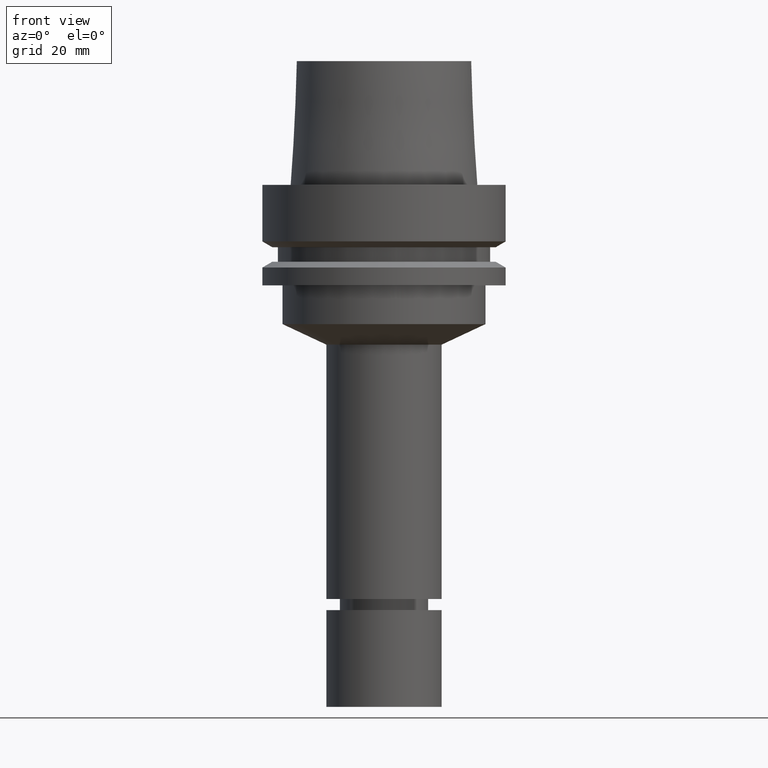
[diagram: clean part render]
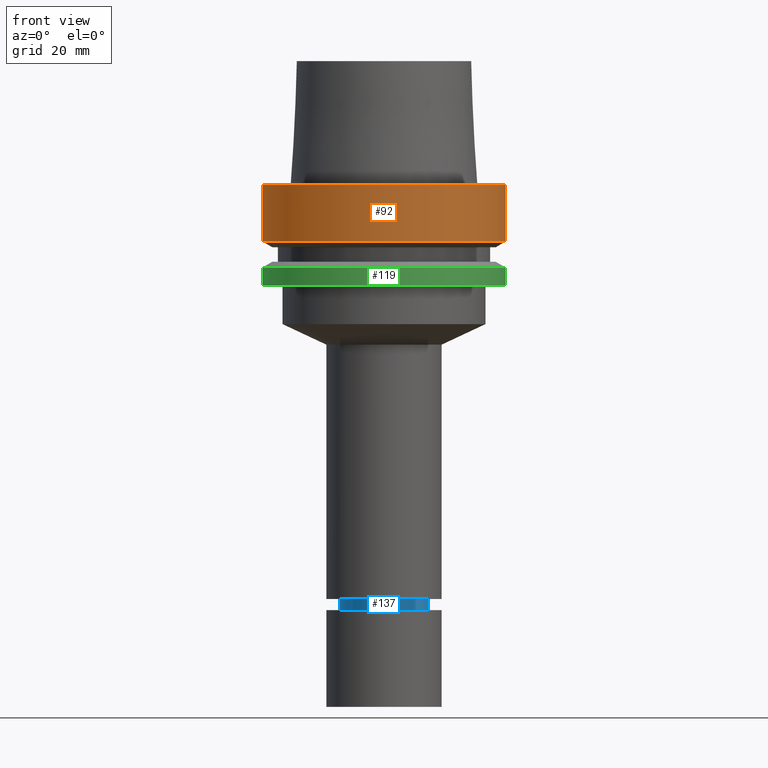
[diagram: same view with three faces highlighted in distinct colors, each labeled with its STEP entity id]
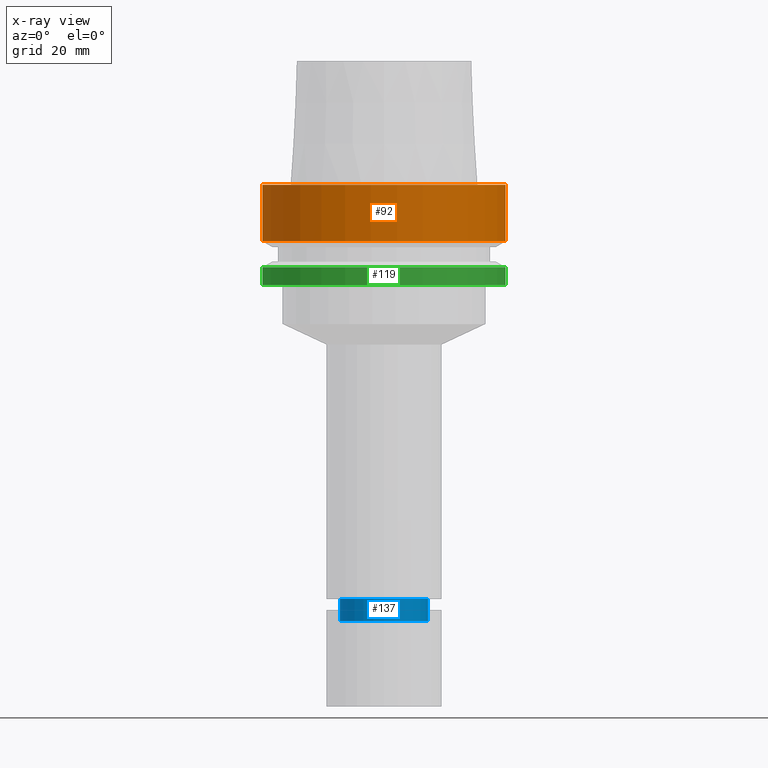
[diagram: x-ray of the same camera — body ghosted, the three highlighted faces saturated]
A machine part, front view with three faces highlighted in distinct colors.
The next image is the same camera in x-ray (body ghosted, the three faces saturated) — at least one of them is partly hidden behind the body in this view.
Their STEP definitions:

[orange] entity #92 — the highlighted cylindrical surface (bore or boss wall) has radius 31.5 mm, axis along (-0, -0, 1).
#86=EDGE_CURVE('Unnamed[1]',#226,#226,#227,.T.);
#92=ADVANCED_FACE('Unnamed[1]',(#235,#236),#237,.T.);
#123=EDGE_CURVE('Unnamed[1]',#283,#283,#284,.T.);
#226=VERTEX_POINT('',#421);
#227=CIRCLE('',#422,31.5);
#235=FACE_BOUND('',#432,.T.);
#236=FACE_BOUND('',#433,.T.);
#237=CYLINDRICAL_SURFACE('',#434,31.5);
#283=VERTEX_POINT('',#493);
#284=CIRCLE('',#494,31.5000000000001);
#421=CARTESIAN_POINT('',(8.95369947681261E-016,31.5,-14.6225009252407));
#422=AXIS2_PLACEMENT_3D('',#642,#643,#644);
#432=EDGE_LOOP('',(#652));
#433=EDGE_LOOP('',(#653));
#434=AXIS2_PLACEMENT_3D('',#654,#655,#656);
#493=CARTESIAN_POINT('',(-3.88267476788467E-031,31.5000000000001,3.85763741731417E-015));
#494=AXIS2_PLACEMENT_3D('',#706,#707,#708);
#642=CARTESIAN_POINT('',(8.95369947681262E-016,1.79073989536252E-015,-14.6225009252407));
#643=DIRECTION('',(-6.12323399573677E-017,-1.22464679914735E-016,1.0));
#644=DIRECTION('',(-1.23259516440783E-032,1.0,1.22464679914735E-016));
#652=ORIENTED_EDGE('',*,*,#123,.F.);
#653=ORIENTED_EDGE('',*,*,#86,.T.);
#654=CARTESIAN_POINT('',(4.47684973840631E-016,8.95369947681262E-016,-7.31125046262035));
#655=DIRECTION('',(-6.12323399573677E-017,-1.22464679914735E-016,1.0));
#656=DIRECTION('',(-1.23259516440783E-032,1.0,1.22464679914735E-016));
#706=CARTESIAN_POINT('',(0.0,0.0,0.0));
#707=DIRECTION('',(-6.12323399573677E-017,-1.22464679914735E-016,1.0));
#708=DIRECTION('',(-1.23259516440783E-032,1.0,1.22464679914735E-016));

[blue] entity #137 — the highlighted cylindrical surface (bore or boss wall) has radius 11.5 mm, axis along (-0, -0, 1).
#108=EDGE_CURVE('Unnamed[1]',#260,#260,#261,.T.);
#129=EDGE_CURVE('Unnamed[1]',#292,#292,#293,.T.);
#137=ADVANCED_FACE('Unnamed[1]',(#303,#304),#305,.T.);
#260=VERTEX_POINT('',#464);
#261=CIRCLE('',#465,11.5000000000021);
#292=VERTEX_POINT('',#505);
#293=CIRCLE('',#506,11.4999999999907);
#303=FACE_BOUND('',#519,.T.);
#304=FACE_BOUND('',#520,.T.);
#305=CYLINDRICAL_SURFACE('',#521,11.4999999999964);
#464=CARTESIAN_POINT('',(6.91382462919479E-015,11.5000000000021,-112.911324865397));
#465=AXIS2_PLACEMENT_3D('',#680,#681,#682);
#505=CARTESIAN_POINT('',(6.55798361643999E-015,11.4999999999907,-107.100000114415));
#506=AXIS2_PLACEMENT_3D('',#715,#716,#717);
#519=EDGE_LOOP('',(#727));
#520=EDGE_LOOP('',(#728));
#521=AXIS2_PLACEMENT_3D('',#729,#730,#731);
#680=CARTESIAN_POINT('',(6.91382462919479E-015,1.38276492583896E-014,-112.911324865397));
#681=DIRECTION('',(-6.12323399573676E-017,-1.22464679914735E-016,1.0));
#682=DIRECTION('',(-1.23259516440783E-032,1.0,1.22464679914735E-016));
#715=CARTESIAN_POINT('',(6.55798361643999E-015,1.311596723288E-014,-107.100000114415));
#716=DIRECTION('',(-6.12323399573677E-017,-1.22464679914735E-016,1.0));
#717=DIRECTION('',(-1.23259516440783E-032,1.0,1.22464679914735E-016));
#727=ORIENTED_EDGE('',*,*,#129,.F.);
#728=ORIENTED_EDGE('',*,*,#108,.T.);
#729=CARTESIAN_POINT('',(6.73590412281739E-015,1.34718082456348E-014,-110.005662489906));
#730=DIRECTION('',(-6.12323399573676E-017,-1.22464679914735E-016,1.0));
#731=DIRECTION('',(-1.23259516440783E-032,1.0,1.22464679914735E-016));

[green] entity #119 — the highlighted cylindrical surface (bore or boss wall) has radius 31.5 mm, axis along (-0, -0, 1).
#101=EDGE_CURVE('Unnamed[1]',#249,#249,#250,.T.);
#119=ADVANCED_FACE('Unnamed[1]',(#276,#277),#278,.T.);
#167=EDGE_CURVE('Unnamed[1]',#348,#348,#349,.T.);
#249=VERTEX_POINT('',#450);
#250=CIRCLE('',#451,31.5);
#276=FACE_BOUND('',#484,.T.);
#277=FACE_BOUND('',#485,.T.);
#278=CYLINDRICAL_SURFACE('',#486,31.4999999999999);
#348=VERTEX_POINT('',#573);
#349=CIRCLE('',#574,31.4999999999998);
#450=CARTESIAN_POINT('',(1.30899429078397E-015,31.5,-21.3774990747592));
#451=AXIS2_PLACEMENT_3D('',#668,#669,#670);
#484=EDGE_LOOP('',(#698));
#485=EDGE_LOOP('',(#699));
#486=AXIS2_PLACEMENT_3D('',#700,#701,#702);
#573=CARTESIAN_POINT('',(1.59204083889155E-015,31.4999999999998,-25.9999999999999));
#574=AXIS2_PLACEMENT_3D('',#775,#776,#777);
#668=CARTESIAN_POINT('',(1.30899429078397E-015,2.61798858156794E-015,-21.3774990747592));
#669=DIRECTION('',(-6.12323399573677E-017,-1.22464679914735E-016,1.0));
#670=DIRECTION('',(-1.23259516440783E-032,1.0,1.22464679914735E-016));
#698=ORIENTED_EDGE('',*,*,#101,.F.);
#699=ORIENTED_EDGE('',*,*,#167,.T.);
#700=CARTESIAN_POINT('',(1.45051756483776E-015,2.90103512967552E-015,-23.6887495373796));
#701=DIRECTION('',(-6.12323399573677E-017,-1.22464679914735E-016,1.0));
#702=DIRECTION('',(-1.23259516440783E-032,1.0,1.22464679914735E-016));
#775=CARTESIAN_POINT('',(1.59204083889155E-015,3.1840816777831E-015,-25.9999999999999));
#776=DIRECTION('',(-6.12323399573676E-017,-1.22464679914735E-016,1.0));
#777=DIRECTION('',(-1.23259516440783E-032,1.0,1.22464679914735E-016));